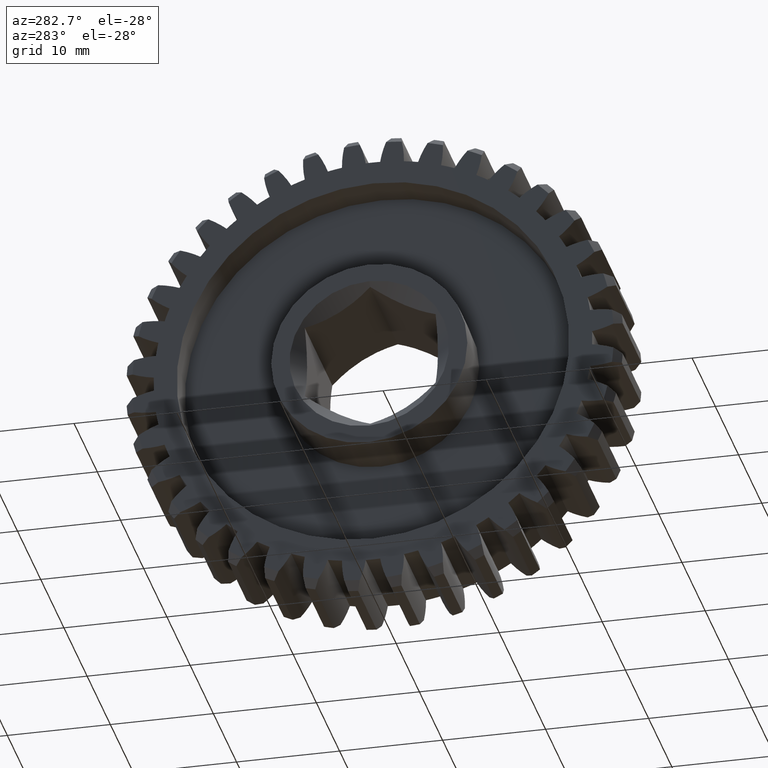
[diagram: clean part render]
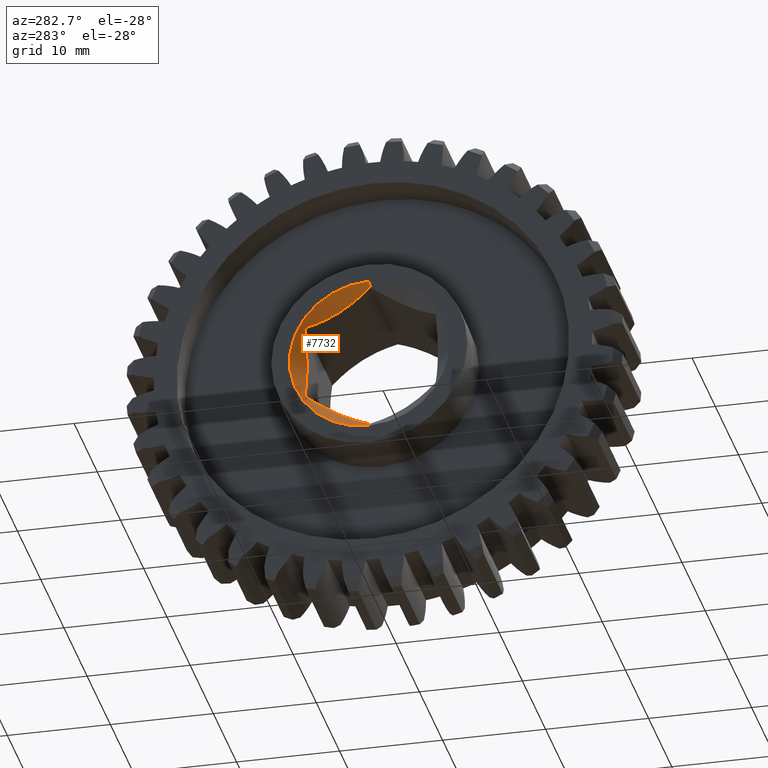
[diagram: same view with one face highlighted and labeled with its STEP entity id]
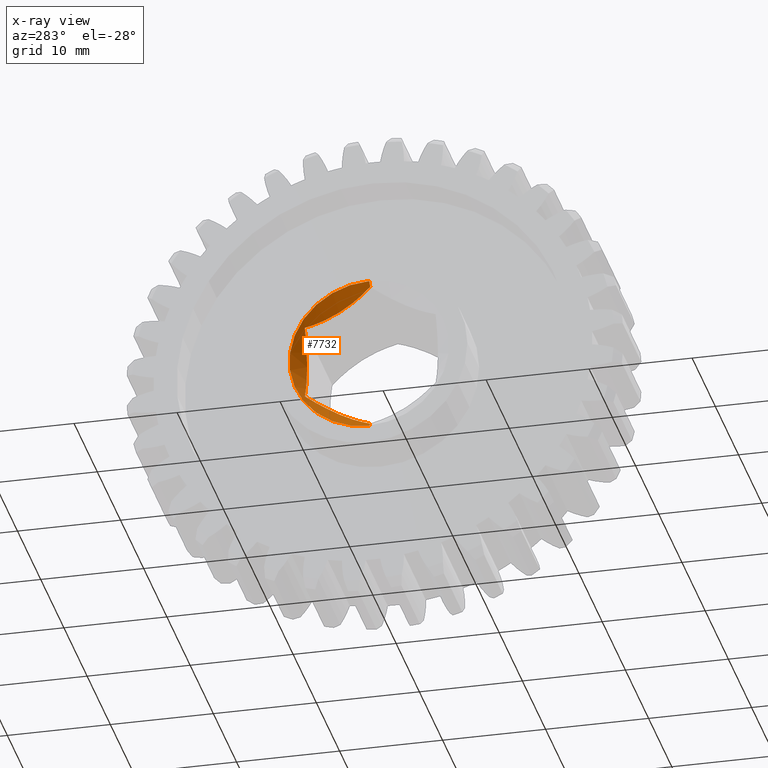
[diagram: x-ray of the same camera — body ghosted, the highlighted face saturated]
A machine part, auxiliary view. The second image highlights one B-rep face of the part: STEP entity #7732.
The next image is the same camera in x-ray: the body ghosted, the highlighted face saturated — about 0% of this face is hidden behind the body in this view.
In plain terms, the highlighted conical surface has half-angle 45 deg.
Its self-contained STEP definition (entity closure, byte-faithful):
#118 = VERTEX_POINT ( 'NONE', #7287 ) ;
#264 = CARTESIAN_POINT ( 'NONE',  ( -0.04617513459481287913, 0.2500000000000000000, 0.1443375672974063495 ) ) ;
#265 = VERTEX_POINT ( 'NONE', #904 ) ;
#292 = DIRECTION ( 'NONE',  ( -1.000000000000000000, -0.000000000000000000, -0.000000000000000000 ) ) ;
#310 = CARTESIAN_POINT ( 'NONE',  ( -0.007511430690266886548, 0.2500000000000000555, -0.02549358080839441223 ) ) ;
#441 = CARTESIAN_POINT ( 'NONE',  ( -0.02530907099823736378, 0.2104931627317132847, 0.1671468504290824220 ) ) ;
#529 = CARTESIAN_POINT ( 'NONE',  ( -0.007527346895463143603, 0.1136276322523038368, -0.2230721905265654059 ) ) ;
#677 = CARTESIAN_POINT ( 'NONE',  ( -0.04617513459481295546, 1.105616642537342427E-16, -0.2886751345948129210 ) ) ;
#823 = CARTESIAN_POINT ( 'NONE',  ( -0.06250000000000001388, 0.000000000000000000, 0.000000000000000000 ) ) ;
#830 = AXIS2_PLACEMENT_3D ( 'NONE', #823, #292, #6253 ) ;
#842 = CARTESIAN_POINT ( 'NONE',  ( -0.008472938443684099180, 0.2500000000000000000, 0.02524923552275232935 ) ) ;
#904 = CARTESIAN_POINT ( 'NONE',  ( -0.06250000000000001388, -3.735172737399427639E-17, 0.3050000000000000488 ) ) ;
#965 = CARTESIAN_POINT ( 'NONE',  ( -0.03483126945468082575, 0.01964815077690897083, 0.2773312694546861135 ) ) ;
#1176 = CARTESIAN_POINT ( 'NONE',  ( -0.02530907099823744358, 0.03950683726828677772, -0.2658658514631368486 ) ) ;
#1215 = EDGE_CURVE ( 'NONE', #8470, #265, #3259, .T. ) ;
#1342 = VERTEX_POINT ( 'NONE', #7492 ) ;
#1687 = CARTESIAN_POINT ( 'NONE',  ( -0.02510447491225713257, 0.2101212623329412610, -0.1673615672244251895 ) ) ;
#1836 = EDGE_CURVE ( 'NONE', #118, #265, #1866, .T. ) ;
#1866 = CIRCLE ( 'NONE', #6759, 0.3050000000000000488 ) ;
#2059 = ORIENTED_EDGE ( 'NONE', *, *, #2755, .T. ) ;
#2173 = FACE_OUTER_BOUND ( 'NONE', #2571, .T. ) ;
#2229 = CARTESIAN_POINT ( 'NONE',  ( -0.02515243372191163646, 0.2500000000000000555, 0.09833819269919261141 ) ) ;
#2354 = LINE ( 'NONE', #8389, #5575 ) ;
#2454 = CARTESIAN_POINT ( 'NONE',  ( -0.007447000400361507462, 0.1036358322685734384, 0.2288409589368610997 ) ) ;
#2571 = EDGE_LOOP ( 'NONE', ( #2059, #4608, #5444, #7211, #2659, #6532 ) ) ;
#2659 = ORIENTED_EDGE ( 'NONE', *, *, #7478, .T. ) ;
#2755 = EDGE_CURVE ( 'NONE', #1342, #8470, #4445, .T. ) ;
#2853 = CARTESIAN_POINT ( 'NONE',  ( -0.01216213758383572451, 0.2500000000000000555, 0.05002911534491342321 ) ) ;
#2937 = CARTESIAN_POINT ( 'NONE',  ( -0.03535706511221589632, 0.2500000000000000555, -0.1217352764533984749 ) ) ;
#3062 = DIRECTION ( 'NONE',  ( -0.7071067811865462405, 0.000000000000000000, -0.7071067811865486830 ) ) ;
#3189 = CARTESIAN_POINT ( 'NONE',  ( -0.007447000400361525677, 0.1463641677314265477, -0.2041717429553581986 ) ) ;
#3259 = LINE ( 'NONE', #5940, #4239 ) ;
#3632 = CARTESIAN_POINT ( 'NONE',  ( -0.007494322516597151651, 0.2500000000000000555, 0.01257827838746349361 ) ) ;
#3743 = B_SPLINE_CURVE_WITH_KNOTS ( 'NONE', 3,
 ( #4502, #7158, #1176, #3856, #6508, #5020, #529, #3189, #5871, #1687, #4375, #7206 ),
 .UNSPECIFIED., .F., .F.,
 ( 4, 2, 2, 2, 2, 4 ),
 ( 2.544317589398813708E-07, 0.001893759980981787189, 0.002840512755593211595, 0.003787265530204636001, 0.005680771079427488282, 0.007574276628650341431 ),
 .UNSPECIFIED. ) ;
#3744 = DIRECTION ( 'NONE',  ( 1.000000000000000000, -0.000000000000000000, -0.000000000000000000 ) ) ;
#3856 = CARTESIAN_POINT ( 'NONE',  ( -0.01503392178509950321, 0.07053907455292381112, -0.2479493809132952697 ) ) ;
#3868 = DIRECTION ( 'NONE',  ( -0.7071067811865462405, -8.659560562354947649E-17, 0.7071067811865486830 ) ) ;
#4169 = CARTESIAN_POINT ( 'NONE',  ( -0.04057998671271947216, 0.2500000000000000000, -0.1331472715332194523 ) ) ;
#4210 = CARTESIAN_POINT ( 'NONE',  ( -0.02173173208884043861, 0.2500000000000000000, -0.08632496132552651413 ) ) ;
#4239 = VECTOR ( 'NONE', #3868, 39.37007874015748854 ) ;
#4292 = CARTESIAN_POINT ( 'NONE',  ( -0.01126284641317527001, 0.08218411835378909569, 0.2412261117401406363 ) ) ;
#4375 = CARTESIAN_POINT ( 'NONE',  ( -0.03483126945468069391, 0.2303518492230909320, -0.1556814324375331848 ) ) ;
#4426 = CARTESIAN_POINT ( 'NONE',  ( -0.03489768221780037427, 0.2304668795030758166, 0.1556150196744189307 ) ) ;
#4445 = B_SPLINE_CURVE_WITH_KNOTS ( 'NONE', 3,
 ( #6312, #4426, #441, #5795, #8273, #7617, #8442, #2454, #4292, #7577, #965, #7654 ),
 .UNSPECIFIED., .F., .F.,
 ( 4, 2, 2, 2, 2, 4 ),
 ( 2.544317589395483281E-07, 0.001893759980981789791, 0.002840512755593215932, 0.003787265530204640337, 0.005680771079427491752, 0.007574276628650344033 ),
 .UNSPECIFIED. ) ;
#4502 = CARTESIAN_POINT ( 'NONE',  ( -0.04617513459481295546, 1.105616642537342427E-16, -0.2886751345948129210 ) ) ;
#4608 = ORIENTED_EDGE ( 'NONE', *, *, #1215, .T. ) ;
#4817 = CARTESIAN_POINT ( 'NONE',  ( -0.04617513459481289301, 0.2500000000000000000, -0.1443375672974063773 ) ) ;
#4904 = CARTESIAN_POINT ( 'NONE',  ( -0.04617513459481289301, 0.2500000000000000000, -0.1443375672974063773 ) ) ;
#4940 = CARTESIAN_POINT ( 'NONE',  ( -0.01486944213844349286, 0.2499999999999999722, 0.06222679055819808902 ) ) ;
#5020 = CARTESIAN_POINT ( 'NONE',  ( -0.008539985234482672799, 0.1025577801058271954, -0.2294633726432230292 ) ) ;
#5444 = ORIENTED_EDGE ( 'NONE', *, *, #1836, .F. ) ;
#5453 = CONICAL_SURFACE ( 'NONE', #830, 0.3050000000000000488, 0.7853981633974500554 ) ;
#5575 = VECTOR ( 'NONE', #3062, 39.37007874015748854 ) ;
#5658 = CARTESIAN_POINT ( 'NONE',  ( -0.01143098554526794305, 0.2500000000000000555, -0.05015284877981391470 ) ) ;
#5663 = EDGE_CURVE ( 'NONE', #7358, #1342, #7837, .T. ) ;
#5789 = CARTESIAN_POINT ( 'NONE',  ( -0.04617513459481296240, -2.440635355885720504E-17, 0.2886751345948129210 ) ) ;
#5795 = CARTESIAN_POINT ( 'NONE',  ( -0.01503392178509943035, 0.1794609254470762028, 0.1850633209789239730 ) ) ;
#5871 = CARTESIAN_POINT ( 'NONE',  ( -0.01126284641317530470, 0.1678158816462109182, -0.1917865901520785510 ) ) ;
#5940 = CARTESIAN_POINT ( 'NONE',  ( -0.06250000000000001388, -3.735172737399427639E-17, 0.3050000000000000488 ) ) ;
#6253 = DIRECTION ( 'NONE',  ( 0.000000000000000000, 0.000000000000000000, -1.000000000000000000 ) ) ;
#6312 = CARTESIAN_POINT ( 'NONE',  ( -0.04617513459481287913, 0.2500000000000000000, 0.1443375672974063495 ) ) ;
#6330 = CARTESIAN_POINT ( 'NONE',  ( -0.06250000000000001388, 0.000000000000000000, 0.000000000000000000 ) ) ;
#6508 = CARTESIAN_POINT ( 'NONE',  ( -0.01230072069892556436, 0.08106364779137498200, -0.2418730157209696419 ) ) ;
#6532 = ORIENTED_EDGE ( 'NONE', *, *, #5663, .T. ) ;
#6759 = AXIS2_PLACEMENT_3D ( 'NONE', #6330, #3744, #8462 ) ;
#7158 = CARTESIAN_POINT ( 'NONE',  ( -0.03489768221780045060, 0.01953312049692424238, -0.2773976822178004231 ) ) ;
#7206 = CARTESIAN_POINT ( 'NONE',  ( -0.04617513459481289301, 0.2500000000000000000, -0.1443375672974063773 ) ) ;
#7211 = ORIENTED_EDGE ( 'NONE', *, *, #8530, .F. ) ;
#7287 = CARTESIAN_POINT ( 'NONE',  ( -0.06250000000000001388, 0.000000000000000000, -0.3050000000000000488 ) ) ;
#7358 = VERTEX_POINT ( 'NONE', #4817 ) ;
#7478 = EDGE_CURVE ( 'NONE', #8415, #7358, #3743, .T. ) ;
#7492 = CARTESIAN_POINT ( 'NONE',  ( -0.04617513459481287913, 0.2500000000000000000, 0.1443375672974063495 ) ) ;
#7574 = CARTESIAN_POINT ( 'NONE',  ( -0.03496802790204126682, 0.2500000000000000000, 0.1219233539118751430 ) ) ;
#7577 = CARTESIAN_POINT ( 'NONE',  ( -0.02510447491225711522, 0.03987873766705876677, 0.2656511346677940533 ) ) ;
#7617 = CARTESIAN_POINT ( 'NONE',  ( -0.008539985234482646778, 0.1474422198941728324, 0.2035493292489961581 ) ) ;
#7654 = CARTESIAN_POINT ( 'NONE',  ( -0.04617513459481296240, -2.440635355885720504E-17, 0.2886751345948129210 ) ) ;
#7732 = ADVANCED_FACE ( 'NONE', ( #2173 ), #5453, .F. ) ;
#7837 = B_SPLINE_CURVE_WITH_KNOTS ( 'NONE', 3,
 ( #4904, #4169, #2937, #8230, #4210, #5658, #310, #3632, #842, #2853, #4940, #2229, #7574, #264 ),
 .UNSPECIFIED., .F., .F.,
 ( 4, 2, 2, 2, 2, 2, 4 ),
 ( 0.009686556404847331686, 0.01064196709056878555, 0.01159737777629023942, 0.01350819914773314714, 0.01446360983345460101, 0.01541902051917605487, 0.01732984189061896260 ),
 .UNSPECIFIED. ) ;
#8230 = CARTESIAN_POINT ( 'NONE',  ( -0.02592110123153920642, 0.2499999999999999167, -0.09830979852874954794 ) ) ;
#8273 = CARTESIAN_POINT ( 'NONE',  ( -0.01230072069892553140, 0.1689363522086251290, 0.1911396861712497119 ) ) ;
#8389 = CARTESIAN_POINT ( 'NONE',  ( -0.06250000000000001388, 0.000000000000000000, -0.3050000000000000488 ) ) ;
#8415 = VERTEX_POINT ( 'NONE', #677 ) ;
#8442 = CARTESIAN_POINT ( 'NONE',  ( -0.007527346895463092429, 0.1363723677476961493, 0.2099405113656538091 ) ) ;
#8462 = DIRECTION ( 'NONE',  ( 0.000000000000000000, 0.000000000000000000, -1.000000000000000000 ) ) ;
#8470 = VERTEX_POINT ( 'NONE', #5789 ) ;
#8530 = EDGE_CURVE ( 'NONE', #8415, #118, #2354, .T. ) ;